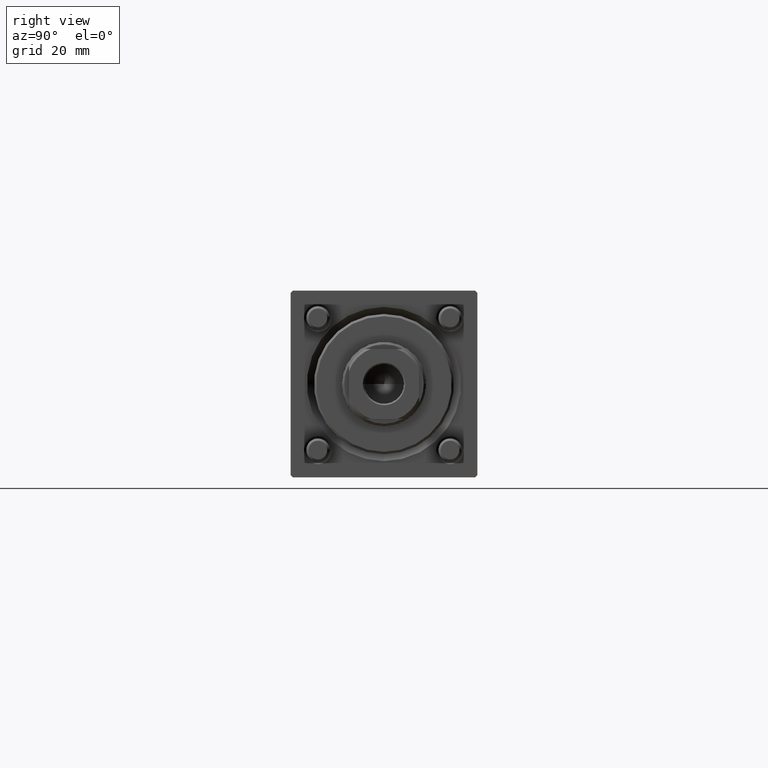
[diagram: clean part render]
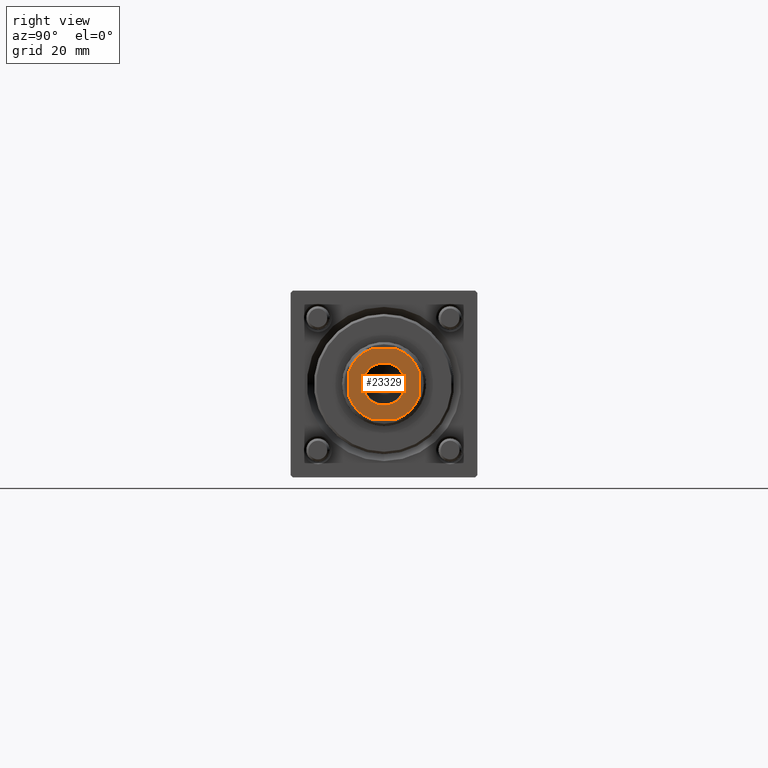
[diagram: same view with one face highlighted and labeled with its STEP entity id]
A machine part, right view. The second image highlights one B-rep face of the part: STEP entity #23329.
In plain terms, the highlighted planar face has unit normal (1, 0, 0).
Its self-contained STEP definition (entity closure, byte-faithful):
#330 = CARTESIAN_POINT ( 'NONE',  ( 0.000000000000000000, 0.000000000000000000, 110.0000000000000000 ) ) ;
#656 = CARTESIAN_POINT ( 'NONE',  ( -7.499999999999999112, 2.783882181414884638, 110.0000000000000000 ) ) ;
#2551 = CARTESIAN_POINT ( 'NONE',  ( -4.549999999999998934, 5.572142936120455355E-16, 110.0000000000000000 ) ) ;
#4859 = FACE_OUTER_BOUND ( 'NONE', #45955, .T. ) ;
#4887 = AXIS2_PLACEMENT_3D ( 'NONE', #40521, #19052, #5295 ) ;
#5295 = DIRECTION ( 'NONE',  ( 1.000000000000000000, 0.000000000000000000, 0.000000000000000000 ) ) ;
#5537 = DIRECTION ( 'NONE',  ( 1.000000000000000000, 0.000000000000000000, 0.000000000000000000 ) ) ;
#5675 = VERTEX_POINT ( 'NONE', #49416 ) ;
#5960 = VERTEX_POINT ( 'NONE', #30955 ) ;
#8522 = CIRCLE ( 'NONE', #4887, 7.999999999999954703 ) ;
#9135 = CARTESIAN_POINT ( 'NONE',  ( 0.000000000000000000, 0.000000000000000000, 110.0000000000000000 ) ) ;
#10019 = CARTESIAN_POINT ( 'NONE',  ( 0.000000000000000000, 0.000000000000000000, 110.0000000000000000 ) ) ;
#10076 = DIRECTION ( 'NONE',  ( 0.000000000000000000, -0.000000000000000000, -1.000000000000000000 ) ) ;
#10814 = ORIENTED_EDGE ( 'NONE', *, *, #47866, .T. ) ;
#11491 = DIRECTION ( 'NONE',  ( -1.000000000000000000, -1.156482317317871478E-16, -0.000000000000000000 ) ) ;
#11680 = CIRCLE ( 'NONE', #56529, 4.549999999999998934 ) ;
#12169 = VECTOR ( 'NONE', #5537, 1000.000000000000000 ) ;
#12573 = AXIS2_PLACEMENT_3D ( 'NONE', #330, #48478, #35303 ) ;
#12657 = ORIENTED_EDGE ( 'NONE', *, *, #48710, .T. ) ;
#12891 = CARTESIAN_POINT ( 'NONE',  ( 0.000000000000000000, 0.000000000000000000, 110.0000000000000000 ) ) ;
#12965 = EDGE_CURVE ( 'NONE', #5675, #44110, #21916, .T. ) ;
#13467 = VERTEX_POINT ( 'NONE', #2551 ) ;
#13755 = DIRECTION ( 'NONE',  ( 1.000000000000000000, 0.000000000000000000, 0.000000000000000000 ) ) ;
#14600 = DIRECTION ( 'NONE',  ( -0.000000000000000000, 0.000000000000000000, 1.000000000000000000 ) ) ;
#14805 = AXIS2_PLACEMENT_3D ( 'NONE', #10019, #14600, #13755 ) ;
#15517 = DIRECTION ( 'NONE',  ( 1.000000000000000000, 0.000000000000000000, 0.000000000000000000 ) ) ;
#16489 = CARTESIAN_POINT ( 'NONE',  ( 2.783882181414688350, 7.499999999999999112, 110.0000000000000000 ) ) ;
#17610 = CARTESIAN_POINT ( 'NONE',  ( 7.500000000000000000, 7.500000000000000000, 110.0000000000000000 ) ) ;
#18032 = DIRECTION ( 'NONE',  ( 1.000000000000000000, 0.000000000000000000, 0.000000000000000000 ) ) ;
#18328 = DIRECTION ( 'NONE',  ( 1.000000000000000000, 0.000000000000000000, 0.000000000000000000 ) ) ;
#19052 = DIRECTION ( 'NONE',  ( -0.000000000000000000, 0.000000000000000000, 1.000000000000000000 ) ) ;
#19516 = CARTESIAN_POINT ( 'NONE',  ( 4.549999999999998934, 0.000000000000000000, 110.0000000000000000 ) ) ;
#19830 = VERTEX_POINT ( 'NONE', #28803 ) ;
#20288 = AXIS2_PLACEMENT_3D ( 'NONE', #40375, #44676, #18328 ) ;
#21580 = CARTESIAN_POINT ( 'NONE',  ( 7.500000000000000888, 2.783882181414685686, 110.0000000000000000 ) ) ;
#21916 = LINE ( 'NONE', #17610, #24603 ) ;
#23028 = CIRCLE ( 'NONE', #20288, 7.999999999999954703 ) ;
#23318 = CARTESIAN_POINT ( 'NONE',  ( -7.500000000000000000, 7.499999999999998224, 110.0000000000000000 ) ) ;
#23329 = ADVANCED_FACE ( 'NONE', ( #43830, #4859 ), #48141, .T. ) ;
#24006 = VECTOR ( 'NONE', #37364, 1000.000000000000000 ) ;
#24488 = EDGE_CURVE ( 'NONE', #35676, #39277, #23028, .T. ) ;
#24603 = VECTOR ( 'NONE', #43683, 1000.000000000000000 ) ;
#25055 = EDGE_CURVE ( 'NONE', #42953, #35676, #37025, .T. ) ;
#25184 = EDGE_CURVE ( 'NONE', #5960, #5675, #40447, .T. ) ;
#25375 = CIRCLE ( 'NONE', #29968, 7.999999999999887201 ) ;
#25461 = EDGE_LOOP ( 'NONE', ( #10814, #12657 ) ) ;
#26800 = EDGE_CURVE ( 'NONE', #39277, #19830, #27328, .T. ) ;
#26811 = ORIENTED_EDGE ( 'NONE', *, *, #12965, .T. ) ;
#26905 = DIRECTION ( 'NONE',  ( -0.000000000000000000, 0.000000000000000000, 1.000000000000000000 ) ) ;
#27328 = LINE ( 'NONE', #23318, #24006 ) ;
#27831 = CARTESIAN_POINT ( 'NONE',  ( 0.000000000000000000, 0.000000000000000000, 110.0000000000000000 ) ) ;
#28803 = CARTESIAN_POINT ( 'NONE',  ( -7.499999999999997335, -2.783882181414887302, 110.0000000000000000 ) ) ;
#29106 = EDGE_CURVE ( 'NONE', #44760, #5960, #35350, .T. ) ;
#29931 = ORIENTED_EDGE ( 'NONE', *, *, #26800, .T. ) ;
#29968 = AXIS2_PLACEMENT_3D ( 'NONE', #9135, #26905, #18032 ) ;
#30955 = CARTESIAN_POINT ( 'NONE',  ( 2.783882181414686574, -7.500000000000000000, 110.0000000000000000 ) ) ;
#32159 = AXIS2_PLACEMENT_3D ( 'NONE', #12891, #43255, #48700 ) ;
#34860 = ORIENTED_EDGE ( 'NONE', *, *, #25055, .T. ) ;
#35256 = EDGE_CURVE ( 'NONE', #19830, #44760, #8522, .T. ) ;
#35303 = DIRECTION ( 'NONE',  ( 1.000000000000000000, 0.000000000000000000, 0.000000000000000000 ) ) ;
#35350 = LINE ( 'NONE', #35639, #12169 ) ;
#35639 = CARTESIAN_POINT ( 'NONE',  ( -7.499999999999998224, -7.500000000000000000, 110.0000000000000000 ) ) ;
#35676 = VERTEX_POINT ( 'NONE', #38909 ) ;
#36267 = ORIENTED_EDGE ( 'NONE', *, *, #35256, .T. ) ;
#37025 = LINE ( 'NONE', #37592, #43169 ) ;
#37364 = DIRECTION ( 'NONE',  ( 1.156482317317871725E-16, -1.000000000000000000, 0.000000000000000000 ) ) ;
#37592 = CARTESIAN_POINT ( 'NONE',  ( -7.500000000000000000, 7.499999999999998224, 110.0000000000000000 ) ) ;
#37792 = CARTESIAN_POINT ( 'NONE',  ( -2.783882181414881973, -7.500000000000000000, 110.0000000000000000 ) ) ;
#38909 = CARTESIAN_POINT ( 'NONE',  ( -2.783882181414885082, 7.499999999999999112, 110.0000000000000000 ) ) ;
#39277 = VERTEX_POINT ( 'NONE', #656 ) ;
#40375 = CARTESIAN_POINT ( 'NONE',  ( 0.000000000000000000, 0.000000000000000000, 110.0000000000000000 ) ) ;
#40447 = CIRCLE ( 'NONE', #14805, 7.999999999999887201 ) ;
#40521 = CARTESIAN_POINT ( 'NONE',  ( 0.000000000000000000, 0.000000000000000000, 110.0000000000000000 ) ) ;
#40915 = VERTEX_POINT ( 'NONE', #19516 ) ;
#42953 = VERTEX_POINT ( 'NONE', #16489 ) ;
#43169 = VECTOR ( 'NONE', #11491, 1000.000000000000000 ) ;
#43255 = DIRECTION ( 'NONE',  ( -0.000000000000000000, 0.000000000000000000, 1.000000000000000000 ) ) ;
#43683 = DIRECTION ( 'NONE',  ( -1.156482317317871478E-16, 1.000000000000000000, -0.000000000000000000 ) ) ;
#43830 = FACE_BOUND ( 'NONE', #25461, .T. ) ;
#44110 = VERTEX_POINT ( 'NONE', #21580 ) ;
#44676 = DIRECTION ( 'NONE',  ( -0.000000000000000000, 0.000000000000000000, 1.000000000000000000 ) ) ;
#44760 = VERTEX_POINT ( 'NONE', #37792 ) ;
#45955 = EDGE_LOOP ( 'NONE', ( #26811, #54669, #34860, #51675, #29931, #36267, #52487, #54542 ) ) ;
#47866 = EDGE_CURVE ( 'NONE', #40915, #13467, #54701, .T. ) ;
#48141 = PLANE ( 'NONE',  #32159 ) ;
#48186 = EDGE_CURVE ( 'NONE', #44110, #42953, #25375, .T. ) ;
#48478 = DIRECTION ( 'NONE',  ( 0.000000000000000000, -0.000000000000000000, -1.000000000000000000 ) ) ;
#48700 = DIRECTION ( 'NONE',  ( 1.000000000000000000, 0.000000000000000000, 0.000000000000000000 ) ) ;
#48710 = EDGE_CURVE ( 'NONE', #13467, #40915, #11680, .T. ) ;
#49416 = CARTESIAN_POINT ( 'NONE',  ( 7.500000000000000888, -2.783882181414683465, 110.0000000000000000 ) ) ;
#51675 = ORIENTED_EDGE ( 'NONE', *, *, #24488, .T. ) ;
#52487 = ORIENTED_EDGE ( 'NONE', *, *, #29106, .T. ) ;
#54542 = ORIENTED_EDGE ( 'NONE', *, *, #25184, .T. ) ;
#54669 = ORIENTED_EDGE ( 'NONE', *, *, #48186, .T. ) ;
#54701 = CIRCLE ( 'NONE', #12573, 4.549999999999998934 ) ;
#56529 = AXIS2_PLACEMENT_3D ( 'NONE', #27831, #10076, #15517 ) ;